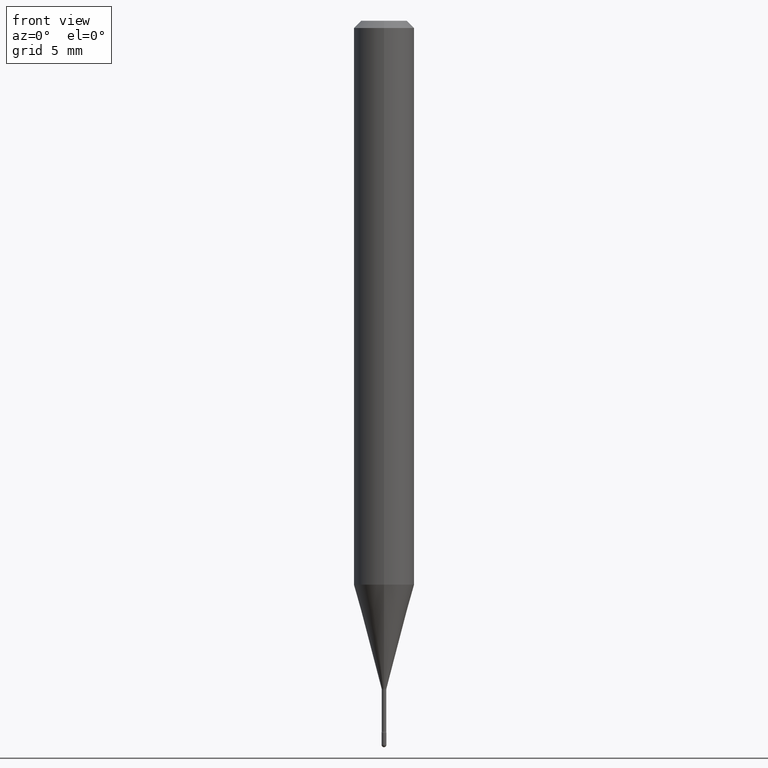
[diagram: clean part render]
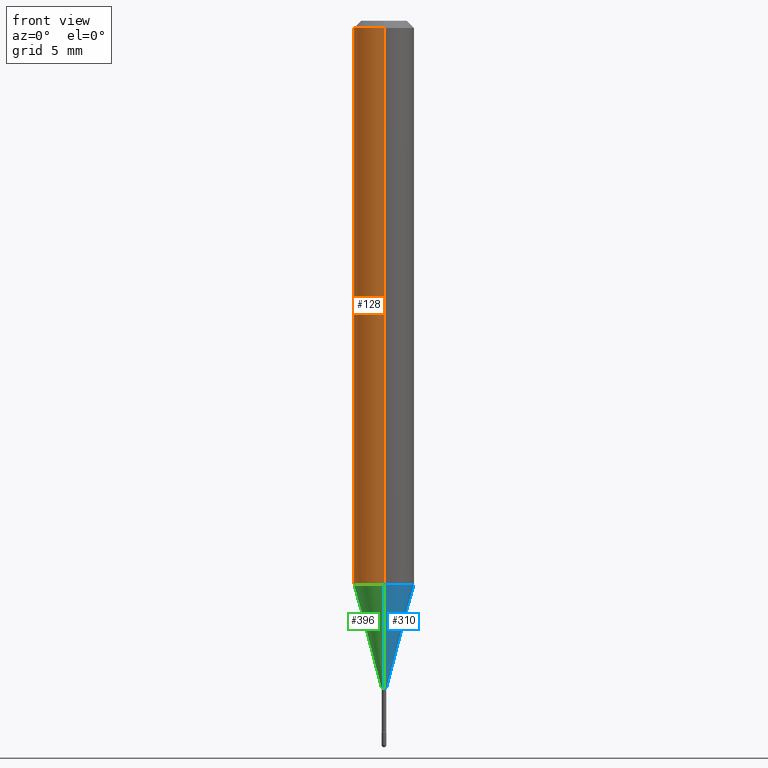
[diagram: same view with three faces highlighted in distinct colors, each labeled with its STEP entity id]
A machine part, front view with three faces highlighted in distinct colors.
Their STEP definitions:

[orange] entity #128 — the highlighted cylindrical surface (edge-blend (fillet) strip) has radius 1.5875 mm, axis along (-0, 0, 1).
#8 = CIRCLE ( 'NONE', #462, 0.06250000000000000000 ) ;
#13 = VERTEX_POINT ( 'NONE', #493 ) ;
#35 = CARTESIAN_POINT ( 'NONE',  ( 4.440892098500909166E-16, 0.06249999999999594075, -1.164287463322519756 ) ) ;
#59 = DIRECTION ( 'NONE',  ( -2.444369529050259608E-29, 3.493055566267258911E-15, 1.000000000000000000 ) ) ;
#81 = EDGE_CURVE ( 'NONE', #188, #13, #8, .T. ) ;
#88 = CARTESIAN_POINT ( 'NONE',  ( 2.845948798400788253E-29, -4.066920804493912675E-15, -1.164287463322519312 ) ) ;
#89 = CARTESIAN_POINT ( 'NONE',  ( 4.440892098500912124E-16, 0.06249999999999995837, -0.01500000000000030129 ) ) ;
#96 = DIRECTION ( 'NONE',  ( -2.444369529050259608E-29, 3.493055566267258516E-15, 1.000000000000000000 ) ) ;
#109 = ORIENTED_EDGE ( 'NONE', *, *, #420, .F. ) ;
#119 = CARTESIAN_POINT ( 'NONE',  ( -4.364351673553912750E-16, -0.06250000000000005551, -0.01499999999999986587 ) ) ;
#128 = ADVANCED_FACE ( 'NONE', ( #131 ), #249, .T. ) ;
#131 = FACE_OUTER_BOUND ( 'NONE', #558, .T. ) ;
#161 = LINE ( 'NONE', #402, #198 ) ;
#174 = CIRCLE ( 'NONE', #349, 0.06250000000000000000 ) ;
#188 = VERTEX_POINT ( 'NONE', #35 ) ;
#198 = VECTOR ( 'NONE', #278, 39.37007874015748143 ) ;
#228 = VERTEX_POINT ( 'NONE', #119 ) ;
#239 = LINE ( 'NONE', #321, #464 ) ;
#249 = CYLINDRICAL_SURFACE ( 'NONE', #537, 0.06250000000000000000 ) ;
#270 = DIRECTION ( 'NONE',  ( -6.982962677686265922E-15, -1.000000000000000000, 3.483106191921935554E-15 ) ) ;
#278 = DIRECTION ( 'NONE',  ( -2.444369529050259608E-29, 3.493055566267258911E-15, 1.000000000000000000 ) ) ;
#293 = DIRECTION ( 'NONE',  ( -2.444369529050259608E-29, 3.493055566267258516E-15, 1.000000000000000000 ) ) ;
#300 = CARTESIAN_POINT ( 'NONE',  ( -1.169113584055446105E-44, 1.669184350826100908E-30, 4.780733988912460139E-16 ) ) ;
#305 = CARTESIAN_POINT ( 'NONE',  ( 3.666554293575409416E-31, -5.239583349400916642E-17, -0.01500000000000008271 ) ) ;
#313 = ORIENTED_EDGE ( 'NONE', *, *, #81, .T. ) ;
#321 = CARTESIAN_POINT ( 'NONE',  ( -4.364351673553916201E-16, -0.06250000000000000000, 6.963893717829496712E-16 ) ) ;
#349 = AXIS2_PLACEMENT_3D ( 'NONE', #305, #96, #270 ) ;
#350 = EDGE_CURVE ( 'NONE', #394, #228, #174, .T. ) ;
#394 = VERTEX_POINT ( 'NONE', #89 ) ;
#401 = ORIENTED_EDGE ( 'NONE', *, *, #350, .F. ) ;
#402 = CARTESIAN_POINT ( 'NONE',  ( 4.440892098500625669E-16, 0.06250000000000000000, 2.597574259995424060E-16 ) ) ;
#411 = EDGE_CURVE ( 'NONE', #13, #228, #239, .T. ) ;
#417 = DIRECTION ( 'NONE',  ( -6.982962677686265922E-15, -1.000000000000000000, 3.493055566267257728E-15 ) ) ;
#420 = EDGE_CURVE ( 'NONE', #188, #394, #161, .T. ) ;
#459 = DIRECTION ( 'NONE',  ( -2.444369529050259608E-29, 3.493055566267258516E-15, 1.000000000000000000 ) ) ;
#462 = AXIS2_PLACEMENT_3D ( 'NONE', #88, #459, #472 ) ;
#464 = VECTOR ( 'NONE', #59, 39.37007874015748143 ) ;
#472 = DIRECTION ( 'NONE',  ( -6.982962677686265922E-15, -1.000000000000000000, 4.370956789862821150E-15 ) ) ;
#484 = ORIENTED_EDGE ( 'NONE', *, *, #411, .T. ) ;
#493 = CARTESIAN_POINT ( 'NONE',  ( -4.364351673553632704E-16, -0.06250000000000409395, -1.164287463322519089 ) ) ;
#537 = AXIS2_PLACEMENT_3D ( 'NONE', #300, #293, #417 ) ;
#558 = EDGE_LOOP ( 'NONE', ( #109, #313, #484, #401 ) ) ;

[blue] entity #310 — the highlighted conical surface has half-angle 15 deg.
#13 = VERTEX_POINT ( 'NONE', #493 ) ;
#35 = CARTESIAN_POINT ( 'NONE',  ( 4.440892098500909166E-16, 0.06249999999999594075, -1.164287463322519756 ) ) ;
#45 = DIRECTION ( 'NONE',  ( -6.982962677686265922E-15, -1.000000000000000000, 0.000000000000000000 ) ) ;
#46 = CARTESIAN_POINT ( 'NONE',  ( 3.368567319581452030E-29, -4.813753684199207477E-15, -1.378092501787273605 ) ) ;
#58 = ORIENTED_EDGE ( 'NONE', *, *, #162, .F. ) ;
#61 = DIRECTION ( 'NONE',  ( -2.444369529050259608E-29, 3.493055566267258516E-15, 1.000000000000000000 ) ) ;
#74 = LINE ( 'NONE', #259, #240 ) ;
#120 = ORIENTED_EDGE ( 'NONE', *, *, #218, .T. ) ;
#122 = DIRECTION ( 'NONE',  ( 1.839019923739595977E-15, 0.2588190451025243477, 0.9659258262890673130 ) ) ;
#125 = AXIS2_PLACEMENT_3D ( 'NONE', #46, #222, #45 ) ;
#160 = VERTEX_POINT ( 'NONE', #557 ) ;
#162 = EDGE_CURVE ( 'NONE', #361, #13, #74, .T. ) ;
#176 = CARTESIAN_POINT ( 'NONE',  ( 3.702718207185757329E-17, 0.005211112605659110920, -1.378092501787273605 ) ) ;
#188 = VERTEX_POINT ( 'NONE', #35 ) ;
#209 = AXIS2_PLACEMENT_3D ( 'NONE', #365, #61, #276 ) ;
#213 = ORIENTED_EDGE ( 'NONE', *, *, #556, .T. ) ;
#218 = EDGE_CURVE ( 'NONE', #361, #160, #519, .T. ) ;
#222 = DIRECTION ( 'NONE',  ( -2.444369529050259608E-29, 3.493055566267258516E-15, 1.000000000000000000 ) ) ;
#230 = AXIS2_PLACEMENT_3D ( 'NONE', #483, #395, #309 ) ;
#240 = VECTOR ( 'NONE', #380, 39.37007874015748854 ) ;
#246 = LINE ( 'NONE', #176, #303 ) ;
#259 = CARTESIAN_POINT ( 'NONE',  ( -3.638900483453792750E-17, -0.005211112605668737768, -1.378092501787273605 ) ) ;
#276 = DIRECTION ( 'NONE',  ( -6.982962677686265922E-15, -1.000000000000000000, 4.370956789862821150E-15 ) ) ;
#303 = VECTOR ( 'NONE', #122, 39.37007874015748143 ) ;
#309 = DIRECTION ( 'NONE',  ( -6.982962677686265922E-15, -1.000000000000000000, 0.000000000000000000 ) ) ;
#310 = ADVANCED_FACE ( 'NONE', ( #351 ), #375, .T. ) ;
#320 = CIRCLE ( 'NONE', #209, 0.06250000000000000000 ) ;
#336 = ORIENTED_EDGE ( 'NONE', *, *, #470, .F. ) ;
#351 = FACE_OUTER_BOUND ( 'NONE', #548, .T. ) ;
#361 = VERTEX_POINT ( 'NONE', #397 ) ;
#365 = CARTESIAN_POINT ( 'NONE',  ( 2.845948798400788253E-29, -4.066920804493912675E-15, -1.164287463322519312 ) ) ;
#375 = CONICAL_SURFACE ( 'NONE', #230, 0.005211112605663924778, 0.2617993877991496299 ) ;
#380 = DIRECTION ( 'NONE',  ( -1.807323732225325801E-15, -0.2588190451025175753, 0.9659258262890690894 ) ) ;
#395 = DIRECTION ( 'NONE',  ( -2.444369529050259608E-29, 3.493055566267258516E-15, 1.000000000000000000 ) ) ;
#397 = CARTESIAN_POINT ( 'NONE',  ( -3.638900483453792750E-17, -0.005211112605668737768, -1.378092501787273605 ) ) ;
#470 = EDGE_CURVE ( 'NONE', #13, #188, #320, .T. ) ;
#483 = CARTESIAN_POINT ( 'NONE',  ( 3.368567319581452030E-29, -4.813753684199207477E-15, -1.378092501787273605 ) ) ;
#493 = CARTESIAN_POINT ( 'NONE',  ( -4.364351673553632704E-16, -0.06250000000000409395, -1.164287463322519089 ) ) ;
#519 = CIRCLE ( 'NONE', #125, 0.005211112605663924778 ) ;
#548 = EDGE_LOOP ( 'NONE', ( #120, #213, #336, #58 ) ) ;
#556 = EDGE_CURVE ( 'NONE', #160, #188, #246, .T. ) ;
#557 = CARTESIAN_POINT ( 'NONE',  ( 2.405581959609745161E-16, 0.005211112605659110920, -1.378092501787273605 ) ) ;

[green] entity #396 — the highlighted conical surface has half-angle 15 deg.
#2 = DIRECTION ( 'NONE',  ( -2.444369529050259608E-29, 3.493055566267258516E-15, 1.000000000000000000 ) ) ;
#6 = EDGE_CURVE ( 'NONE', #160, #361, #93, .T. ) ;
#8 = CIRCLE ( 'NONE', #462, 0.06250000000000000000 ) ;
#13 = VERTEX_POINT ( 'NONE', #493 ) ;
#26 = DIRECTION ( 'NONE',  ( -2.444369529050259608E-29, 3.493055566267258516E-15, 1.000000000000000000 ) ) ;
#35 = CARTESIAN_POINT ( 'NONE',  ( 4.440892098500909166E-16, 0.06249999999999594075, -1.164287463322519756 ) ) ;
#44 = AXIS2_PLACEMENT_3D ( 'NONE', #223, #2, #181 ) ;
#74 = LINE ( 'NONE', #259, #240 ) ;
#75 = EDGE_LOOP ( 'NONE', ( #242, #235, #456, #106 ) ) ;
#81 = EDGE_CURVE ( 'NONE', #188, #13, #8, .T. ) ;
#87 = CONICAL_SURFACE ( 'NONE', #44, 0.005211112605663924778, 0.2617993877991496299 ) ;
#88 = CARTESIAN_POINT ( 'NONE',  ( 2.845948798400788253E-29, -4.066920804493912675E-15, -1.164287463322519312 ) ) ;
#93 = CIRCLE ( 'NONE', #408, 0.005211112605663924778 ) ;
#106 = ORIENTED_EDGE ( 'NONE', *, *, #81, .F. ) ;
#122 = DIRECTION ( 'NONE',  ( 1.839019923739595977E-15, 0.2588190451025243477, 0.9659258262890673130 ) ) ;
#160 = VERTEX_POINT ( 'NONE', #557 ) ;
#162 = EDGE_CURVE ( 'NONE', #361, #13, #74, .T. ) ;
#176 = CARTESIAN_POINT ( 'NONE',  ( 3.702718207185757329E-17, 0.005211112605659110920, -1.378092501787273605 ) ) ;
#181 = DIRECTION ( 'NONE',  ( -6.982962677686265922E-15, -1.000000000000000000, 0.000000000000000000 ) ) ;
#188 = VERTEX_POINT ( 'NONE', #35 ) ;
#223 = CARTESIAN_POINT ( 'NONE',  ( 3.368567319581452030E-29, -4.813753684199207477E-15, -1.378092501787273605 ) ) ;
#235 = ORIENTED_EDGE ( 'NONE', *, *, #6, .T. ) ;
#237 = DIRECTION ( 'NONE',  ( -6.982962677686265922E-15, -1.000000000000000000, 0.000000000000000000 ) ) ;
#240 = VECTOR ( 'NONE', #380, 39.37007874015748854 ) ;
#242 = ORIENTED_EDGE ( 'NONE', *, *, #556, .F. ) ;
#246 = LINE ( 'NONE', #176, #303 ) ;
#259 = CARTESIAN_POINT ( 'NONE',  ( -3.638900483453792750E-17, -0.005211112605668737768, -1.378092501787273605 ) ) ;
#264 = FACE_OUTER_BOUND ( 'NONE', #75, .T. ) ;
#277 = CARTESIAN_POINT ( 'NONE',  ( 3.368567319581452030E-29, -4.813753684199207477E-15, -1.378092501787273605 ) ) ;
#303 = VECTOR ( 'NONE', #122, 39.37007874015748143 ) ;
#361 = VERTEX_POINT ( 'NONE', #397 ) ;
#380 = DIRECTION ( 'NONE',  ( -1.807323732225325801E-15, -0.2588190451025175753, 0.9659258262890690894 ) ) ;
#396 = ADVANCED_FACE ( 'NONE', ( #264 ), #87, .T. ) ;
#397 = CARTESIAN_POINT ( 'NONE',  ( -3.638900483453792750E-17, -0.005211112605668737768, -1.378092501787273605 ) ) ;
#408 = AXIS2_PLACEMENT_3D ( 'NONE', #277, #26, #237 ) ;
#456 = ORIENTED_EDGE ( 'NONE', *, *, #162, .T. ) ;
#459 = DIRECTION ( 'NONE',  ( -2.444369529050259608E-29, 3.493055566267258516E-15, 1.000000000000000000 ) ) ;
#462 = AXIS2_PLACEMENT_3D ( 'NONE', #88, #459, #472 ) ;
#472 = DIRECTION ( 'NONE',  ( -6.982962677686265922E-15, -1.000000000000000000, 4.370956789862821150E-15 ) ) ;
#493 = CARTESIAN_POINT ( 'NONE',  ( -4.364351673553632704E-16, -0.06250000000000409395, -1.164287463322519089 ) ) ;
#556 = EDGE_CURVE ( 'NONE', #160, #188, #246, .T. ) ;
#557 = CARTESIAN_POINT ( 'NONE',  ( 2.405581959609745161E-16, 0.005211112605659110920, -1.378092501787273605 ) ) ;